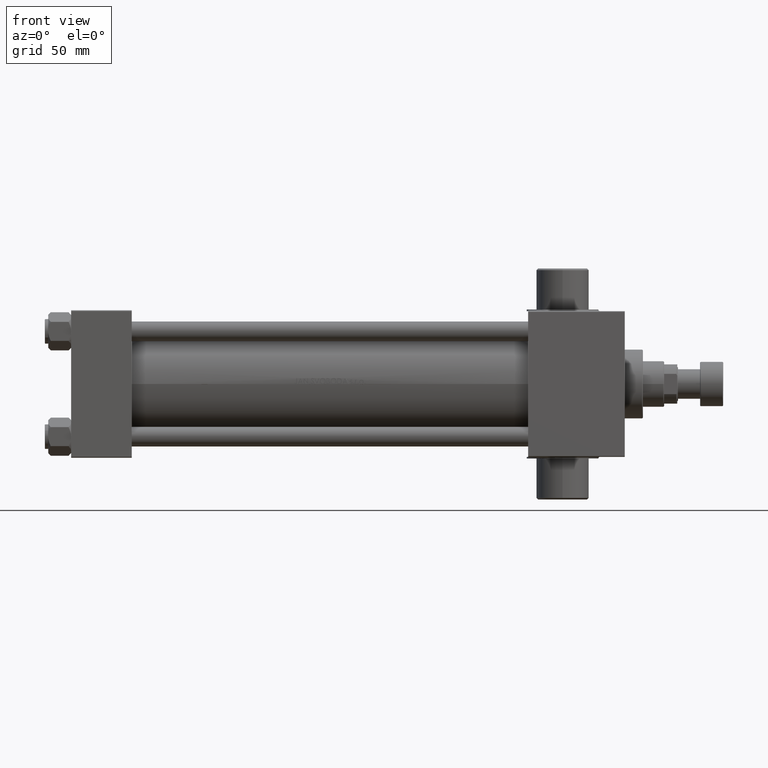
[diagram: clean part render]
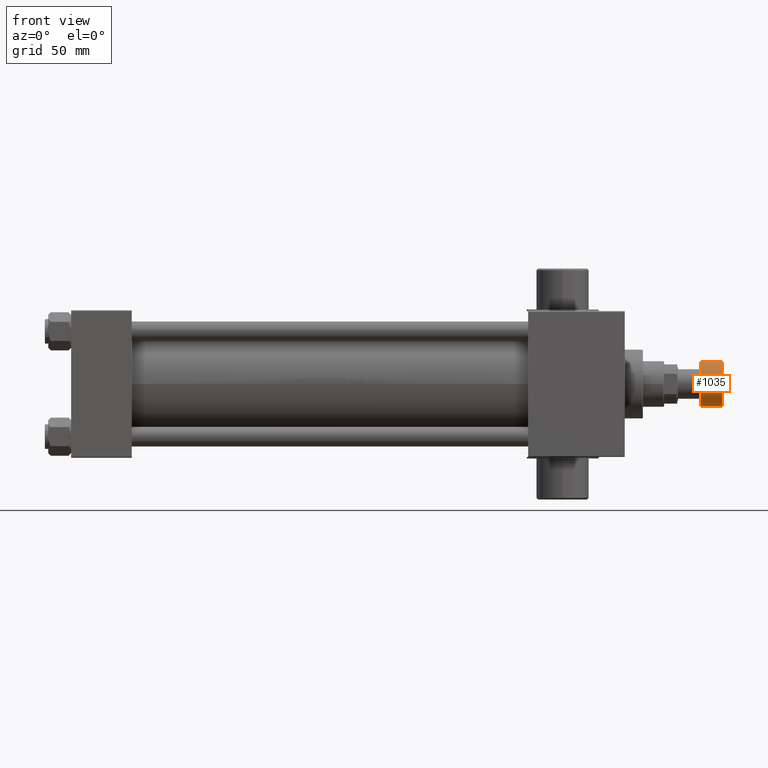
[diagram: same view with one face highlighted and labeled with its STEP entity id]
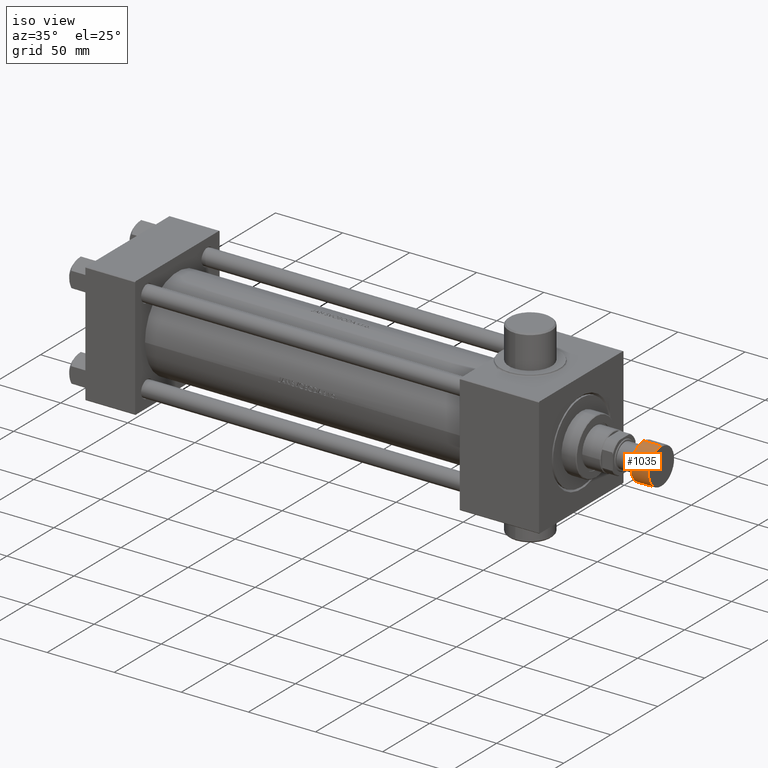
[diagram: same view with one face highlighted and labeled with its STEP entity id]
A machine part, front view. The second image highlights one B-rep face of the part: STEP entity #1035.
A second angle (iso view) of the same face is appended — the face is thin or edge-on in the first view.
In plain terms, the highlighted cylindrical surface (edge-blend (fillet) strip) has radius 13.5 mm, axis along (1, 0, 0).
Its self-contained STEP definition (entity closure, byte-faithful):
#660 = CARTESIAN_POINT ( 'NONE',  ( 13.50000000000000000, 0.000000000000000000, -0.5000000000000004441 ) ) ;
#920 = DIRECTION ( 'NONE',  ( 1.000000000000000000, 0.000000000000000000, 0.000000000000000000 ) ) ;
#1035 = ADVANCED_FACE ( 'NONE', ( #24642 ), #43179, .T. ) ;
#1454 = ORIENTED_EDGE ( 'NONE', *, *, #23693, .T. ) ;
#5014 = ORIENTED_EDGE ( 'NONE', *, *, #12549, .F. ) ;
#7120 = CIRCLE ( 'NONE', #33725, 13.50000000000000000 ) ;
#9231 = CARTESIAN_POINT ( 'NONE',  ( 13.50000000000000000, 0.000000000000000000, -14.00000000000000000 ) ) ;
#9910 = VERTEX_POINT ( 'NONE', #17264 ) ;
#10355 = CARTESIAN_POINT ( 'NONE',  ( 0.000000000000000000, 0.000000000000000000, -14.00000000000000000 ) ) ;
#10799 = ORIENTED_EDGE ( 'NONE', *, *, #23831, .T. ) ;
#11058 = CARTESIAN_POINT ( 'NONE',  ( -13.50000000000000000, 1.653273178848926867E-15, -14.00000000000000000 ) ) ;
#11651 = VECTOR ( 'NONE', #12806, 1000.000000000000000 ) ;
#12549 = EDGE_CURVE ( 'NONE', #9910, #16785, #37479, .T. ) ;
#12806 = DIRECTION ( 'NONE',  ( 0.000000000000000000, 0.000000000000000000, 1.000000000000000000 ) ) ;
#13969 = DIRECTION ( 'NONE',  ( 0.000000000000000000, 0.000000000000000000, 1.000000000000000000 ) ) ;
#16749 = ORIENTED_EDGE ( 'NONE', *, *, #26677, .T. ) ;
#16785 = VERTEX_POINT ( 'NONE', #33553 ) ;
#16811 = CARTESIAN_POINT ( 'NONE',  ( 13.50000000000000000, 0.000000000000000000, -13.50000000000000000 ) ) ;
#17264 = CARTESIAN_POINT ( 'NONE',  ( -13.50000000000000000, 1.653273178848926867E-15, -13.50000000000000000 ) ) ;
#17877 = VERTEX_POINT ( 'NONE', #660 ) ;
#18002 = CARTESIAN_POINT ( 'NONE',  ( 0.000000000000000000, 0.000000000000000000, -13.50000000000000000 ) ) ;
#19271 = VECTOR ( 'NONE', #25571, 1000.000000000000000 ) ;
#21855 = CARTESIAN_POINT ( 'NONE',  ( 0.000000000000000000, 0.000000000000000000, -0.5000000000000004441 ) ) ;
#23693 = EDGE_CURVE ( 'NONE', #39552, #17877, #30882, .T. ) ;
#23831 = EDGE_CURVE ( 'NONE', #9910, #39552, #46571, .T. ) ;
#24332 = AXIS2_PLACEMENT_3D ( 'NONE', #10355, #35823, #29147 ) ;
#24642 = FACE_OUTER_BOUND ( 'NONE', #45069, .T. ) ;
#25571 = DIRECTION ( 'NONE',  ( 0.000000000000000000, 0.000000000000000000, 1.000000000000000000 ) ) ;
#26082 = AXIS2_PLACEMENT_3D ( 'NONE', #18002, #13969, #31581 ) ;
#26677 = EDGE_CURVE ( 'NONE', #17877, #16785, #7120, .T. ) ;
#29147 = DIRECTION ( 'NONE',  ( 1.000000000000000000, 0.000000000000000000, 0.000000000000000000 ) ) ;
#30882 = LINE ( 'NONE', #9231, #11651 ) ;
#31581 = DIRECTION ( 'NONE',  ( 1.000000000000000000, 0.000000000000000000, 0.000000000000000000 ) ) ;
#33553 = CARTESIAN_POINT ( 'NONE',  ( -13.50000000000000000, 1.653273178848926867E-15, -0.5000000000000004441 ) ) ;
#33725 = AXIS2_PLACEMENT_3D ( 'NONE', #21855, #44467, #920 ) ;
#35823 = DIRECTION ( 'NONE',  ( 0.000000000000000000, 0.000000000000000000, 1.000000000000000000 ) ) ;
#37479 = LINE ( 'NONE', #11058, #19271 ) ;
#39552 = VERTEX_POINT ( 'NONE', #16811 ) ;
#43179 = CYLINDRICAL_SURFACE ( 'NONE', #24332, 13.50000000000000000 ) ;
#44467 = DIRECTION ( 'NONE',  ( -0.000000000000000000, -0.000000000000000000, -1.000000000000000000 ) ) ;
#45069 = EDGE_LOOP ( 'NONE', ( #5014, #10799, #1454, #16749 ) ) ;
#46571 = CIRCLE ( 'NONE', #26082, 13.50000000000000000 ) ;